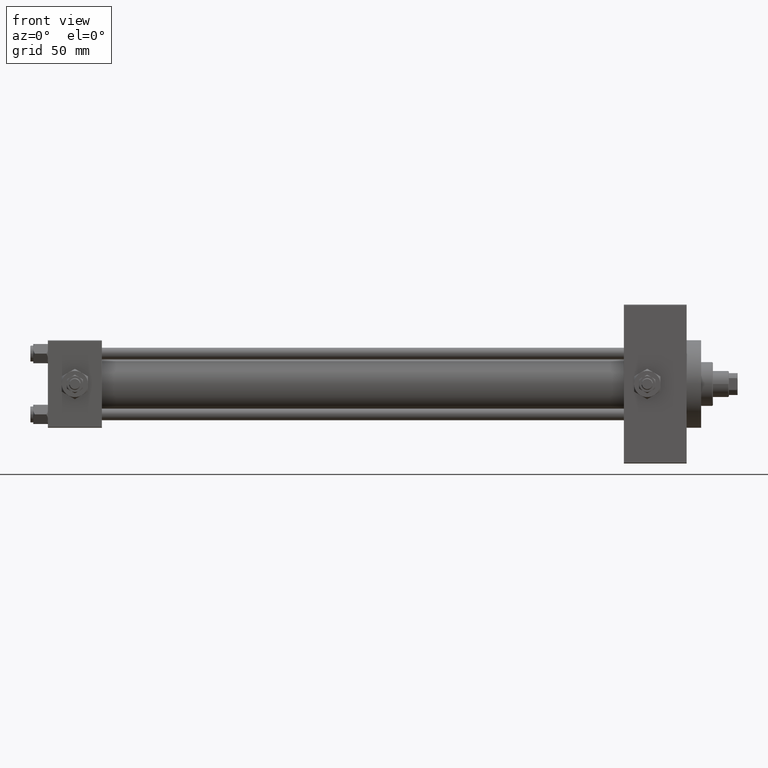
[diagram: clean part render]
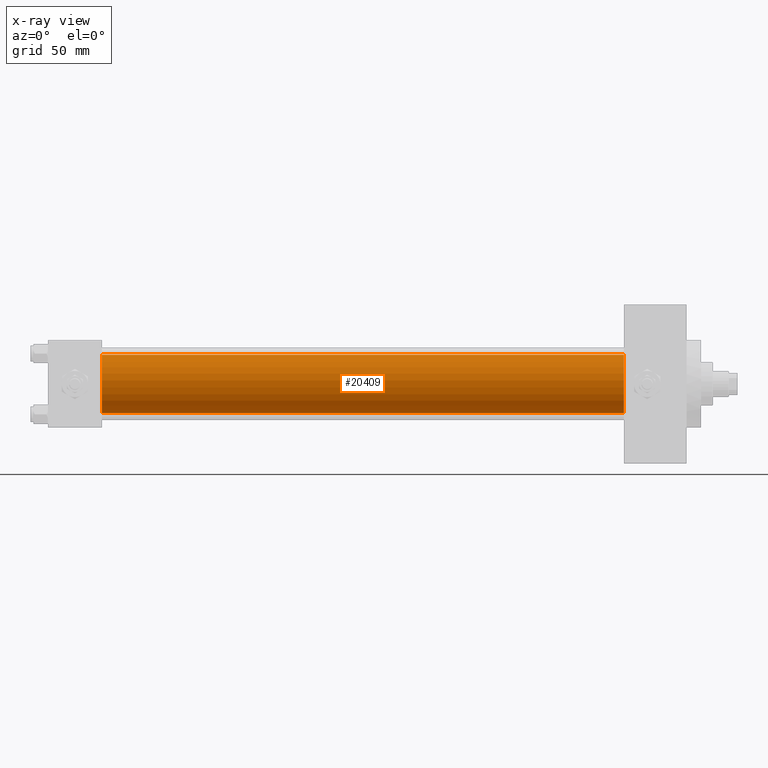
[diagram: x-ray — body ghosted, one internal face saturated and labeled with its STEP entity id]
A machine part, front view, then the same camera in x-ray: the body is ghosted and one INTERNAL B-rep face — a face not visible from any outside direction — is saturated and labeled: STEP entity #20409.
In plain terms, the highlighted cylindrical surface (edge-blend (fillet) strip) has radius 20 mm, axis along (-1, -0, -0).
Its self-contained STEP definition (entity closure, byte-faithful):
#561 = EDGE_CURVE ( 'NONE', #26217, #11265, #14582, .T. ) ;
#1933 = EDGE_CURVE ( 'NONE', #11265, #19600, #41074, .T. ) ;
#4435 = VECTOR ( 'NONE', #45721, 1000.000000000000000 ) ;
#6435 = DIRECTION ( 'NONE',  ( 1.000000000000000000, 0.000000000000000000, 0.000000000000000000 ) ) ;
#8315 = CARTESIAN_POINT ( 'NONE',  ( 37.00000000000000000, -2.602085213965210642E-15, 20.00000000000000000 ) ) ;
#9900 = AXIS2_PLACEMENT_3D ( 'NONE', #26595, #30569, #19104 ) ;
#11265 = VERTEX_POINT ( 'NONE', #8315 ) ;
#13766 = ORIENTED_EDGE ( 'NONE', *, *, #23365, .T. ) ;
#13996 = EDGE_CURVE ( 'NONE', #40254, #19600, #17880, .T. ) ;
#14582 = LINE ( 'NONE', #30513, #4435 ) ;
#17172 = DIRECTION ( 'NONE',  ( 0.000000000000000000, 0.000000000000000000, -1.000000000000000000 ) ) ;
#17880 = LINE ( 'NONE', #26104, #43787 ) ;
#19104 = DIRECTION ( 'NONE',  ( 0.000000000000000000, 0.000000000000000000, -1.000000000000000000 ) ) ;
#19438 = CARTESIAN_POINT ( 'NONE',  ( 394.9999999999999432, -1.527916156705046464E-16, -20.00000000000000000 ) ) ;
#19600 = VERTEX_POINT ( 'NONE', #42950 ) ;
#20409 = ADVANCED_FACE ( 'NONE', ( #33055 ), #21611, .F. ) ;
#20871 = CARTESIAN_POINT ( 'NONE',  ( 394.9999999999999432, -2.602085213965210642E-15, 0.000000000000000000 ) ) ;
#21611 = CYLINDRICAL_SURFACE ( 'NONE', #31292, 20.00000000000000000 ) ;
#22052 = EDGE_LOOP ( 'NONE', ( #13766, #39548, #28526, #30158 ) ) ;
#22900 = CARTESIAN_POINT ( 'NONE',  ( 394.9999999999999432, -2.602085213965210642E-15, 20.00000000000000000 ) ) ;
#23365 = EDGE_CURVE ( 'NONE', #26217, #40254, #32173, .T. ) ;
#26104 = CARTESIAN_POINT ( 'NONE',  ( 394.9999999999999432, -1.527916156705046464E-16, -20.00000000000000000 ) ) ;
#26217 = VERTEX_POINT ( 'NONE', #22900 ) ;
#26595 = CARTESIAN_POINT ( 'NONE',  ( 394.9999999999999432, -2.602085213965210642E-15, 0.000000000000000000 ) ) ;
#28526 = ORIENTED_EDGE ( 'NONE', *, *, #1933, .F. ) ;
#29087 = DIRECTION ( 'NONE',  ( -1.000000000000000000, -0.000000000000000000, -0.000000000000000000 ) ) ;
#29319 = DIRECTION ( 'NONE',  ( -1.000000000000000000, -0.000000000000000000, -0.000000000000000000 ) ) ;
#30158 = ORIENTED_EDGE ( 'NONE', *, *, #561, .F. ) ;
#30513 = CARTESIAN_POINT ( 'NONE',  ( 394.9999999999999432, -2.602085213965210642E-15, 20.00000000000000000 ) ) ;
#30569 = DIRECTION ( 'NONE',  ( 1.000000000000000000, 0.000000000000000000, 0.000000000000000000 ) ) ;
#31292 = AXIS2_PLACEMENT_3D ( 'NONE', #20871, #29319, #32580 ) ;
#32173 = CIRCLE ( 'NONE', #9900, 20.00000000000000000 ) ;
#32580 = DIRECTION ( 'NONE',  ( 0.000000000000000000, 0.000000000000000000, 1.000000000000000000 ) ) ;
#33055 = FACE_OUTER_BOUND ( 'NONE', #22052, .T. ) ;
#36600 = CARTESIAN_POINT ( 'NONE',  ( 37.00000000000000000, -2.602085213965210642E-15, 0.000000000000000000 ) ) ;
#39548 = ORIENTED_EDGE ( 'NONE', *, *, #13996, .T. ) ;
#40254 = VERTEX_POINT ( 'NONE', #19438 ) ;
#41074 = CIRCLE ( 'NONE', #46671, 20.00000000000000000 ) ;
#42950 = CARTESIAN_POINT ( 'NONE',  ( 37.00000000000000000, -1.527916156705046464E-16, -20.00000000000000000 ) ) ;
#43787 = VECTOR ( 'NONE', #29087, 1000.000000000000000 ) ;
#45721 = DIRECTION ( 'NONE',  ( -1.000000000000000000, -0.000000000000000000, -0.000000000000000000 ) ) ;
#46671 = AXIS2_PLACEMENT_3D ( 'NONE', #36600, #6435, #17172 ) ;